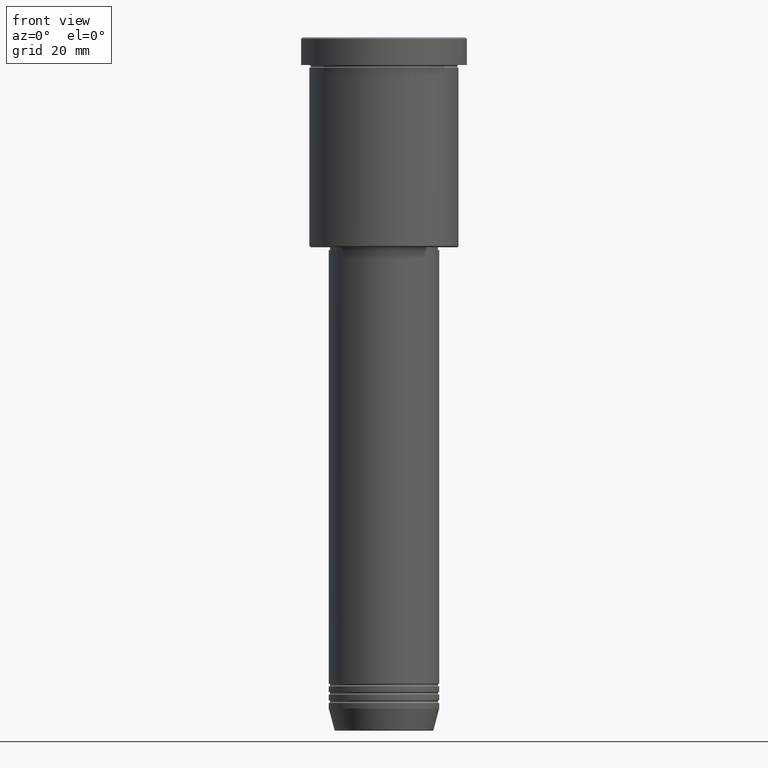
[diagram: clean part render]
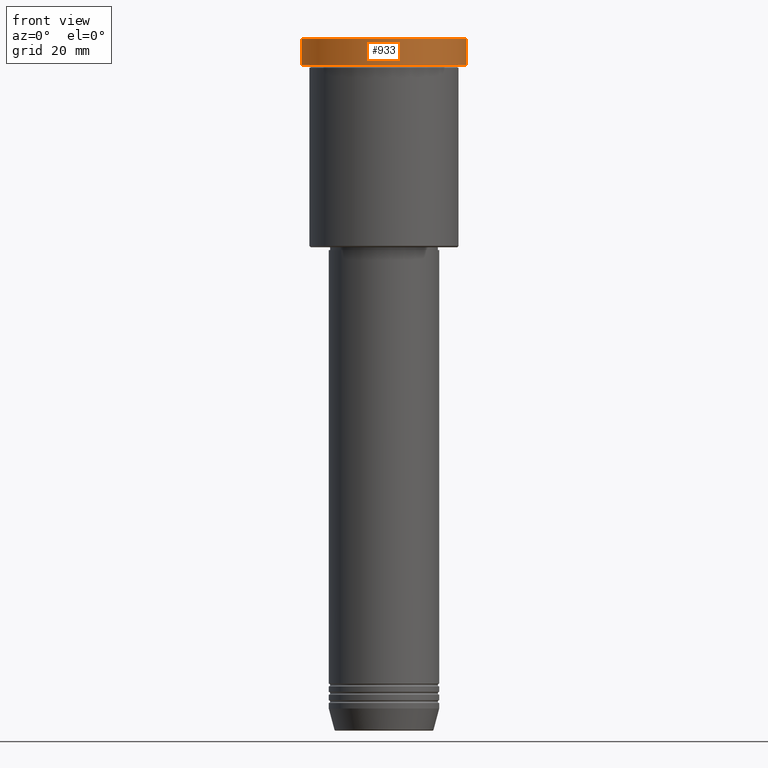
[diagram: same view with one face highlighted and labeled with its STEP entity id]
A machine part, front view. The second image highlights one B-rep face of the part: STEP entity #933.
In plain terms, the highlighted cylindrical surface (partial cylindrical patch) has radius 30 mm, axis along (-0, -0, 1).
Its self-contained STEP definition (entity closure, byte-faithful):
#29 = VECTOR ( 'NONE', #246, 1000.000000000000000 ) ;
#31 = CIRCLE ( 'NONE', #403, 30.00000000000000000 ) ;
#33 = DIRECTION ( 'NONE',  ( -0.000000000000000000, -0.000000000000000000, 1.000000000000000000 ) ) ;
#77 = LINE ( 'NONE', #1063, #29 ) ;
#87 = AXIS2_PLACEMENT_3D ( 'NONE', #940, #481, #399 ) ;
#89 = EDGE_CURVE ( 'NONE', #1151, #936, #793, .T. ) ;
#150 = DIRECTION ( 'NONE',  ( -0.000000000000000000, -0.000000000000000000, 1.000000000000000000 ) ) ;
#210 = CARTESIAN_POINT ( 'NONE',  ( 30.00000000000000000, 0.000000000000000000, -0.5000000000000073275 ) ) ;
#214 = CARTESIAN_POINT ( 'NONE',  ( -30.00000000000000000, 3.673940397442059178E-15, -0.5000000000000073275 ) ) ;
#221 = CARTESIAN_POINT ( 'NONE',  ( 30.00000000000000000, 0.000000000000000000, -9.999999999999992895 ) ) ;
#246 = DIRECTION ( 'NONE',  ( -0.000000000000000000, -0.000000000000000000, 1.000000000000000000 ) ) ;
#399 = DIRECTION ( 'NONE',  ( 1.000000000000000000, 0.000000000000000000, 0.000000000000000000 ) ) ;
#402 = EDGE_CURVE ( 'NONE', #928, #936, #31, .T. ) ;
#403 = AXIS2_PLACEMENT_3D ( 'NONE', #916, #528, #1107 ) ;
#430 = EDGE_LOOP ( 'NONE', ( #991, #704, #535, #699 ) ) ;
#443 = EDGE_CURVE ( 'NONE', #1151, #1012, #591, .T. ) ;
#479 = EDGE_CURVE ( 'NONE', #1012, #928, #77, .T. ) ;
#481 = DIRECTION ( 'NONE',  ( -0.000000000000000000, -0.000000000000000000, 1.000000000000000000 ) ) ;
#528 = DIRECTION ( 'NONE',  ( 0.000000000000000000, 0.000000000000000000, -1.000000000000000000 ) ) ;
#535 = ORIENTED_EDGE ( 'NONE', *, *, #479, .T. ) ;
#575 = FACE_OUTER_BOUND ( 'NONE', #430, .T. ) ;
#591 = CIRCLE ( 'NONE', #87, 30.00000000000000000 ) ;
#599 = CARTESIAN_POINT ( 'NONE',  ( -30.00000000000000000, 3.673940397442059178E-15, 0.000000000000000000 ) ) ;
#602 = CARTESIAN_POINT ( 'NONE',  ( -30.00000000000000000, 3.673940397442059178E-15, -9.999999999999992895 ) ) ;
#699 = ORIENTED_EDGE ( 'NONE', *, *, #402, .T. ) ;
#704 = ORIENTED_EDGE ( 'NONE', *, *, #443, .T. ) ;
#793 = LINE ( 'NONE', #599, #1142 ) ;
#916 = CARTESIAN_POINT ( 'NONE',  ( 0.000000000000000000, 0.000000000000000000, -0.5000000000000073275 ) ) ;
#928 = VERTEX_POINT ( 'NONE', #210 ) ;
#933 = ADVANCED_FACE ( 'NONE', ( #575 ), #948, .T. ) ;
#934 = AXIS2_PLACEMENT_3D ( 'NONE', #1044, #33, #1037 ) ;
#936 = VERTEX_POINT ( 'NONE', #214 ) ;
#940 = CARTESIAN_POINT ( 'NONE',  ( 0.000000000000000000, 0.000000000000000000, -9.999999999999992895 ) ) ;
#948 = CYLINDRICAL_SURFACE ( 'NONE', #934, 30.00000000000000000 ) ;
#991 = ORIENTED_EDGE ( 'NONE', *, *, #89, .F. ) ;
#1012 = VERTEX_POINT ( 'NONE', #221 ) ;
#1037 = DIRECTION ( 'NONE',  ( 1.000000000000000000, 0.000000000000000000, 0.000000000000000000 ) ) ;
#1044 = CARTESIAN_POINT ( 'NONE',  ( 0.000000000000000000, 0.000000000000000000, 0.000000000000000000 ) ) ;
#1063 = CARTESIAN_POINT ( 'NONE',  ( 30.00000000000000000, 0.000000000000000000, 0.000000000000000000 ) ) ;
#1107 = DIRECTION ( 'NONE',  ( 1.000000000000000000, 0.000000000000000000, 0.000000000000000000 ) ) ;
#1142 = VECTOR ( 'NONE', #150, 1000.000000000000000 ) ;
#1151 = VERTEX_POINT ( 'NONE', #602 ) ;